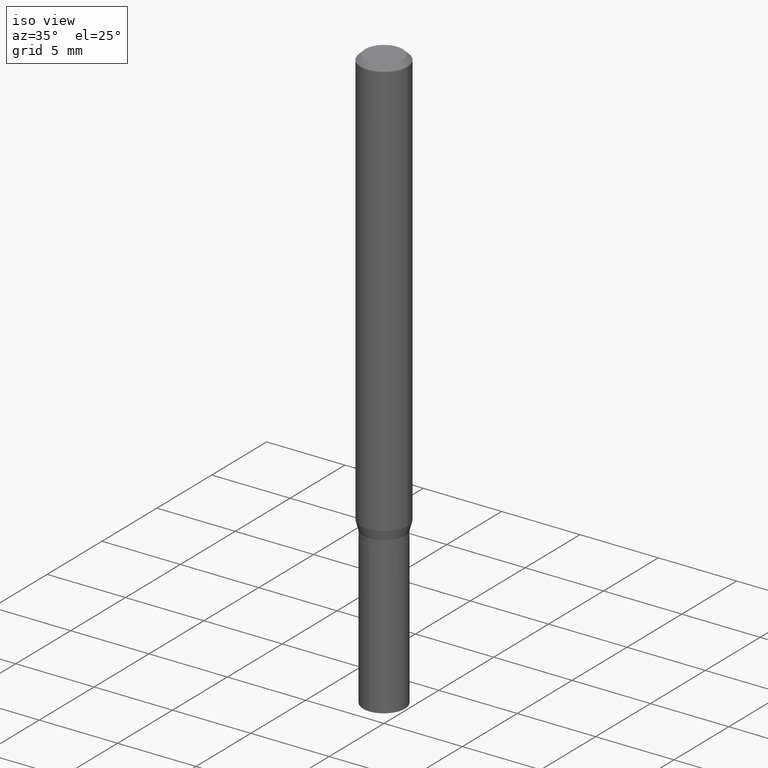
[diagram: clean part render]
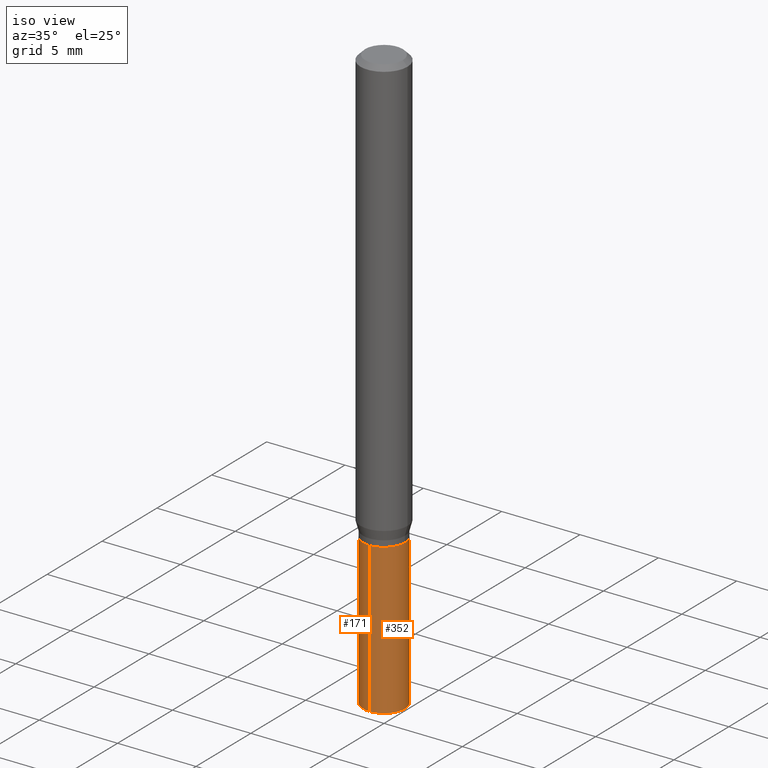
[diagram: same view with one multi-face feature highlighted, each face labeled with its STEP entity id]
A machine part, iso view. The highlighted faces form ONE feature: a constant-radius fillet chain: 2 tangent blend faces with common blend radius 1.3348 mm. The faces share edges in the B-rep.
Their STEP definitions:
[1] entity #352 (Cylinder):
#15 = DIRECTION ( 'NONE',  ( -2.445458899330790108E-29, 3.491495526022433599E-15, 1.000000000000000000 ) ) ;
#22 = VECTOR ( 'NONE', #132, 39.37007874015748143 ) ;
#29 = CARTESIAN_POINT ( 'NONE',  ( 2.676565608369631794E-29, -3.821426325363822773E-15, -1.094499999999999806 ) ) ;
#30 = DIRECTION ( 'NONE',  ( -6.982962677686265922E-15, -1.000000000000000000, 2.599284484932695853E-15 ) ) ;
#31 = AXIS2_PLACEMENT_3D ( 'NONE', #29, #363, #30 ) ;
#57 = AXIS2_PLACEMENT_3D ( 'NONE', #262, #343, #460 ) ;
#71 = EDGE_CURVE ( 'NONE', #123, #269, #135, .T. ) ;
#78 = ORIENTED_EDGE ( 'NONE', *, *, #71, .T. ) ;
#84 = EDGE_CURVE ( 'NONE', #433, #269, #125, .T. ) ;
#123 = VERTEX_POINT ( 'NONE', #276 ) ;
#125 = CIRCLE ( 'NONE', #31, 0.05254999999999999949 ) ;
#126 = LINE ( 'NONE', #199, #397 ) ;
#130 = CARTESIAN_POINT ( 'NONE',  ( 3.733902076419593174E-16, 0.05254999999999616922, -1.094500000000000028 ) ) ;
#132 = DIRECTION ( 'NONE',  ( -2.445458899330790108E-29, 3.491495526022433599E-15, 1.000000000000000000 ) ) ;
#135 = LINE ( 'NONE', #130, #22 ) ;
#154 = DIRECTION ( 'NONE',  ( -6.982962677686265922E-15, -1.000000000000000000, 2.599284484932695853E-15 ) ) ;
#189 = FACE_OUTER_BOUND ( 'NONE', #468, .T. ) ;
#190 = CARTESIAN_POINT ( 'NONE',  ( -3.669546887123774197E-16, -0.05255000000000515509, -1.471595532563954478 ) ) ;
#199 = CARTESIAN_POINT ( 'NONE',  ( -3.669546887123864916E-16, -0.05255000000000382282, -1.094499999999999806 ) ) ;
#209 = CARTESIAN_POINT ( 'NONE',  ( -3.669546887123864916E-16, -0.05255000000000382282, -1.094499999999999806 ) ) ;
#250 = DIRECTION ( 'NONE',  ( -2.445458899330790108E-29, 3.491495526022433205E-15, 1.000000000000000000 ) ) ;
#262 = CARTESIAN_POINT ( 'NONE',  ( 3.598737234376038977E-29, -5.138053690193917852E-15, -1.471595532563954700 ) ) ;
#265 = ORIENTED_EDGE ( 'NONE', *, *, #84, .F. ) ;
#269 = VERTEX_POINT ( 'NONE', #294 ) ;
#276 = CARTESIAN_POINT ( 'NONE',  ( 3.733902076419686358E-16, 0.05254999999999486471, -1.471595532563955144 ) ) ;
#290 = ORIENTED_EDGE ( 'NONE', *, *, #472, .F. ) ;
#294 = CARTESIAN_POINT ( 'NONE',  ( 3.733902076419685865E-16, 0.05254999999999616922, -1.094500000000000028 ) ) ;
#300 = EDGE_CURVE ( 'NONE', #405, #123, #348, .T. ) ;
#311 = ORIENTED_EDGE ( 'NONE', *, *, #300, .T. ) ;
#343 = DIRECTION ( 'NONE',  ( -2.445458899330790108E-29, 3.491495526022433205E-15, 1.000000000000000000 ) ) ;
#345 = CYLINDRICAL_SURFACE ( 'NONE', #416, 0.05254999999999999949 ) ;
#348 = CIRCLE ( 'NONE', #57, 0.05254999999999999949 ) ;
#352 = ADVANCED_FACE ( 'NONE', ( #189 ), #345, .T. ) ;
#363 = DIRECTION ( 'NONE',  ( -2.445458899330790108E-29, 3.491495526022433205E-15, 1.000000000000000000 ) ) ;
#397 = VECTOR ( 'NONE', #15, 39.37007874015748143 ) ;
#405 = VERTEX_POINT ( 'NONE', #190 ) ;
#416 = AXIS2_PLACEMENT_3D ( 'NONE', #449, #250, #154 ) ;
#433 = VERTEX_POINT ( 'NONE', #209 ) ;
#449 = CARTESIAN_POINT ( 'NONE',  ( 2.676565608369631794E-29, -3.821426325363822773E-15, -1.094499999999999806 ) ) ;
#460 = DIRECTION ( 'NONE',  ( -6.982962677686265922E-15, -1.000000000000000000, 5.198568969865391706E-15 ) ) ;
#468 = EDGE_LOOP ( 'NONE', ( #311, #78, #265, #290 ) ) ;
#472 = EDGE_CURVE ( 'NONE', #405, #433, #126, .T. ) ;
[2] entity #171 (Cylinder):
#15 = DIRECTION ( 'NONE',  ( -2.445458899330790108E-29, 3.491495526022433599E-15, 1.000000000000000000 ) ) ;
#22 = VECTOR ( 'NONE', #132, 39.37007874015748143 ) ;
#42 = CIRCLE ( 'NONE', #390, 0.05254999999999999949 ) ;
#71 = EDGE_CURVE ( 'NONE', #123, #269, #135, .T. ) ;
#81 = AXIS2_PLACEMENT_3D ( 'NONE', #227, #193, #307 ) ;
#123 = VERTEX_POINT ( 'NONE', #276 ) ;
#126 = LINE ( 'NONE', #199, #397 ) ;
#130 = CARTESIAN_POINT ( 'NONE',  ( 3.733902076419593174E-16, 0.05254999999999616922, -1.094500000000000028 ) ) ;
#131 = CIRCLE ( 'NONE', #81, 0.05254999999999999949 ) ;
#132 = DIRECTION ( 'NONE',  ( -2.445458899330790108E-29, 3.491495526022433599E-15, 1.000000000000000000 ) ) ;
#135 = LINE ( 'NONE', #130, #22 ) ;
#158 = EDGE_LOOP ( 'NONE', ( #203, #177, #197, #349 ) ) ;
#171 = ADVANCED_FACE ( 'NONE', ( #360 ), #326, .T. ) ;
#177 = ORIENTED_EDGE ( 'NONE', *, *, #423, .T. ) ;
#190 = CARTESIAN_POINT ( 'NONE',  ( -3.669546887123774197E-16, -0.05255000000000515509, -1.471595532563954478 ) ) ;
#193 = DIRECTION ( 'NONE',  ( -2.445458899330790108E-29, 3.491495526022433205E-15, 1.000000000000000000 ) ) ;
#197 = ORIENTED_EDGE ( 'NONE', *, *, #472, .T. ) ;
#199 = CARTESIAN_POINT ( 'NONE',  ( -3.669546887123864916E-16, -0.05255000000000382282, -1.094499999999999806 ) ) ;
#203 = ORIENTED_EDGE ( 'NONE', *, *, #71, .F. ) ;
#209 = CARTESIAN_POINT ( 'NONE',  ( -3.669546887123864916E-16, -0.05255000000000382282, -1.094499999999999806 ) ) ;
#227 = CARTESIAN_POINT ( 'NONE',  ( 3.598737234376038977E-29, -5.138053690193917852E-15, -1.471595532563954700 ) ) ;
#269 = VERTEX_POINT ( 'NONE', #294 ) ;
#276 = CARTESIAN_POINT ( 'NONE',  ( 3.733902076419686358E-16, 0.05254999999999486471, -1.471595532563955144 ) ) ;
#278 = DIRECTION ( 'NONE',  ( -2.445458899330790108E-29, 3.491495526022433205E-15, 1.000000000000000000 ) ) ;
#282 = CARTESIAN_POINT ( 'NONE',  ( 2.676565608369631794E-29, -3.821426325363822773E-15, -1.094499999999999806 ) ) ;
#294 = CARTESIAN_POINT ( 'NONE',  ( 3.733902076419685865E-16, 0.05254999999999616922, -1.094500000000000028 ) ) ;
#298 = DIRECTION ( 'NONE',  ( -6.982962677686265922E-15, -1.000000000000000000, 2.599284484932695853E-15 ) ) ;
#307 = DIRECTION ( 'NONE',  ( -6.982962677686265922E-15, -1.000000000000000000, 5.198568969865391706E-15 ) ) ;
#326 = CYLINDRICAL_SURFACE ( 'NONE', #353, 0.05254999999999999949 ) ;
#349 = ORIENTED_EDGE ( 'NONE', *, *, #377, .F. ) ;
#353 = AXIS2_PLACEMENT_3D ( 'NONE', #282, #278, #447 ) ;
#360 = FACE_OUTER_BOUND ( 'NONE', #158, .T. ) ;
#377 = EDGE_CURVE ( 'NONE', #269, #433, #42, .T. ) ;
#390 = AXIS2_PLACEMENT_3D ( 'NONE', #406, #481, #298 ) ;
#397 = VECTOR ( 'NONE', #15, 39.37007874015748143 ) ;
#405 = VERTEX_POINT ( 'NONE', #190 ) ;
#406 = CARTESIAN_POINT ( 'NONE',  ( 2.676565608369631794E-29, -3.821426325363822773E-15, -1.094499999999999806 ) ) ;
#423 = EDGE_CURVE ( 'NONE', #123, #405, #131, .T. ) ;
#433 = VERTEX_POINT ( 'NONE', #209 ) ;
#447 = DIRECTION ( 'NONE',  ( -6.982962677686265922E-15, -1.000000000000000000, 2.599284484932695853E-15 ) ) ;
#472 = EDGE_CURVE ( 'NONE', #405, #433, #126, .T. ) ;
#481 = DIRECTION ( 'NONE',  ( -2.445458899330790108E-29, 3.491495526022433205E-15, 1.000000000000000000 ) ) ;